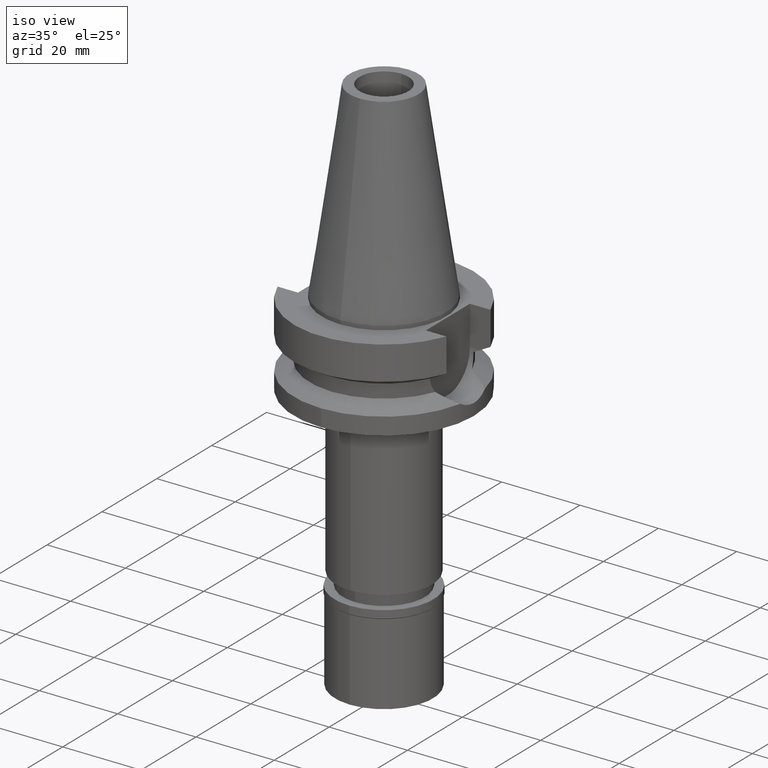
[diagram: clean part render]
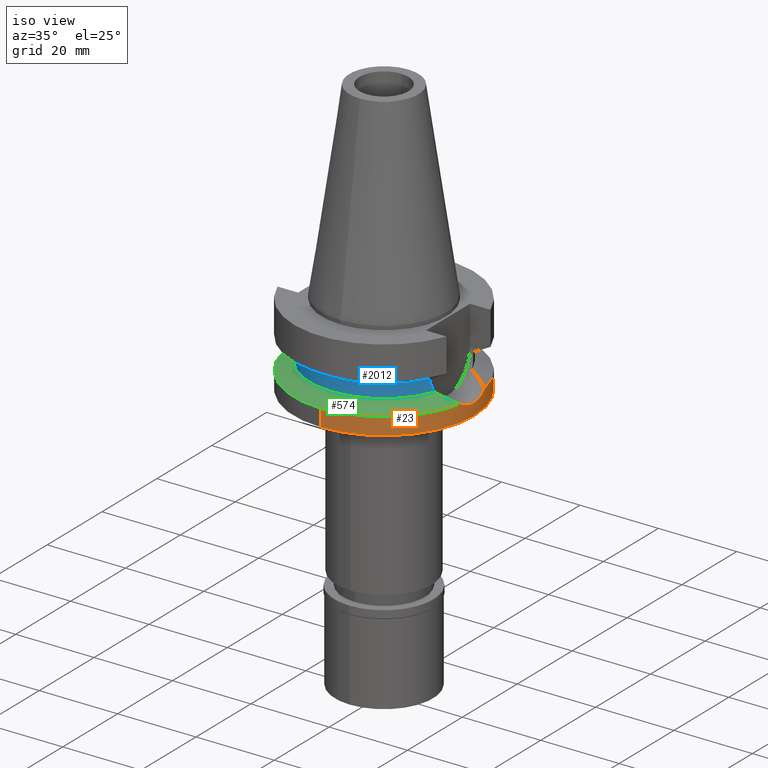
[diagram: same view with three faces highlighted in distinct colors, each labeled with its STEP entity id]
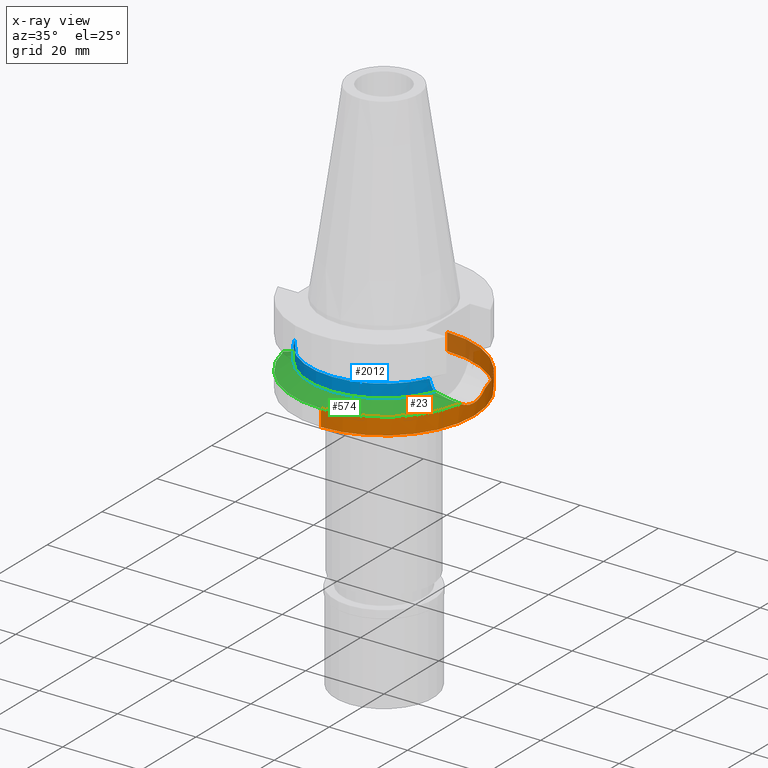
[diagram: x-ray of the same camera — body ghosted, the three highlighted faces saturated]
A machine part, iso view with three faces highlighted in distinct colors.
The next image is the same camera in x-ray (body ghosted, the three faces saturated) — at least one of them is partly hidden behind the body in this view.
Their STEP definitions:

[orange] entity #23 — the highlighted cylindrical surface (partial cylindrical patch) has radius 23 mm, axis along (0, 0, -1).
#23 = ADVANCED_FACE ( 'NONE', ( #2486 ), #594, .T. ) ;
#69 = CARTESIAN_POINT ( 'NONE',  ( 22.88692923645053057, 2.276461704510261974, -18.67142353418033096 ) ) ;
#86 = CARTESIAN_POINT ( 'NONE',  ( 0.0000000000000000000, 1.896610497840000171E-14, 54.87000000000000455 ) ) ;
#95 = CARTESIAN_POINT ( 'NONE',  ( 22.81276282092490248, 3.007048462357388541, -18.45119323510790821 ) ) ;
#121 = CARTESIAN_POINT ( 'NONE',  ( 0.0000000000000000000, -23.00000000000000000, -22.00000000000000000 ) ) ;
#167 = VERTEX_POINT ( 'NONE', #1388 ) ;
#203 = CARTESIAN_POINT ( 'NONE',  ( 22.83389994369429488, -2.758037875350555002, -18.51337712290887438 ) ) ;
#214 = DIRECTION ( 'NONE',  ( 0.0000000000000000000, 2.277793377031000010E-14, -1.000000000000000000 ) ) ;
#242 = EDGE_CURVE ( 'NONE', #167, #2238, #1400, .T. ) ;
#308 = CARTESIAN_POINT ( 'NONE',  ( 0.0000000000000000000, 1.896610497840000171E-14, -22.00000000000000000 ) ) ;
#353 = VERTEX_POINT ( 'NONE', #2067 ) ;
#374 = CARTESIAN_POINT ( 'NONE',  ( 0.0000000000000000000, 23.00000000000000000, -22.00000000000000000 ) ) ;
#422 = VERTEX_POINT ( 'NONE', #2257 ) ;
#459 = AXIS2_PLACEMENT_3D ( 'NONE', #1865, #937, #1881 ) ;
#473 = CARTESIAN_POINT ( 'NONE',  ( 22.87988649924657381, -2.346199435544825018, -18.65051771911470269 ) ) ;
#509 = CIRCLE ( 'NONE', #459, 23.00000000000001066 ) ;
#565 = CARTESIAN_POINT ( 'NONE',  ( 23.00000000000000000, 0.0000000000000000000, -19.00000000000000000 ) ) ;
#580 = CARTESIAN_POINT ( 'NONE',  ( 22.91431153747816651, 1.985557157342199730, -18.75241681136827765 ) ) ;
#583 = ORIENTED_EDGE ( 'NONE', *, *, #1811, .F. ) ;
#594 = CYLINDRICAL_SURFACE ( 'NONE', #1144, 23.00000000000000000 ) ;
#613 = VERTEX_POINT ( 'NONE', #2346 ) ;
#624 = AXIS2_PLACEMENT_3D ( 'NONE', #308, #773, #1718 ) ;
#687 = CARTESIAN_POINT ( 'NONE',  ( 22.84962028092111908, -2.626375749139444160, -18.56047594373221798 ) ) ;
#693 = EDGE_CURVE ( 'NONE', #613, #1492, #1495, .T. ) ;
#773 = DIRECTION ( 'NONE',  ( 0.0000000000000000000, 0.0000000000000000000, 1.000000000000000000 ) ) ;
#803 = CARTESIAN_POINT ( 'NONE',  ( 22.99017193261398617, 0.7694920435362386790, -18.97277318380660915 ) ) ;
#880 = VECTOR ( 'NONE', #1960, 1000.000000000000000 ) ;
#906 = CARTESIAN_POINT ( 'NONE',  ( 22.86637095347489179, -2.474873559118825561, -18.61035720455427267 ) ) ;
#909 = ORIENTED_EDGE ( 'NONE', *, *, #242, .T. ) ;
#937 = DIRECTION ( 'NONE',  ( 0.0000000000000000000, 0.0000000000000000000, -1.000000000000000000 ) ) ;
#949 = EDGE_CURVE ( 'NONE', #613, #353, #2415, .T. ) ;
#955 = CARTESIAN_POINT ( 'NONE',  ( 22.87768279851003328, -2.367574593128547900, -18.64397267214555143 ) ) ;
#972 = CARTESIAN_POINT ( 'NONE',  ( 23.00000000000000000, 0.0000000000000000000, -19.00000000000000000 ) ) ;
#980 = ORIENTED_EDGE ( 'NONE', *, *, #2529, .T. ) ;
#997 = EDGE_CURVE ( 'NONE', #2238, #1492, #2912, .T. ) ;
#1069 = CARTESIAN_POINT ( 'NONE',  ( 22.70469624449562218, 3.750064563766630332, -18.12842789141188149 ) ) ;
#1142 = CARTESIAN_POINT ( 'NONE',  ( 23.00000000000000000, 0.0000000000000000000, -19.00000000000000000 ) ) ;
#1144 = AXIS2_PLACEMENT_3D ( 'NONE', #86, #1518, #2236 ) ;
#1159 = ORIENTED_EDGE ( 'NONE', *, *, #997, .T. ) ;
#1170 = CARTESIAN_POINT ( 'NONE',  ( 22.69499876051721898, -3.748130140520612219, -18.08542776797766649 ) ) ;
#1180 = AXIS2_PLACEMENT_3D ( 'NONE', #1662, #2600, #1733 ) ;
#1275 = CARTESIAN_POINT ( 'NONE',  ( 0.0000000000000000000, 23.00000000000000000, -17.63279163029000074 ) ) ;
#1318 = CARTESIAN_POINT ( 'NONE',  ( 22.94840264622341408, 1.547803452031115246, -18.85231193865289612 ) ) ;
#1325 = ORIENTED_EDGE ( 'NONE', *, *, #693, .F. ) ;
#1388 = CARTESIAN_POINT ( 'NONE',  ( 0.0000000000000000000, -23.00000000000000000, -17.63279163029000074 ) ) ;
#1400 = LINE ( 'NONE', #2334, #2782 ) ;
#1443 = CARTESIAN_POINT ( 'NONE',  ( 22.87434885953238961, -2.399678633086312907, -18.63406941507518866 ) ) ;
#1492 = VERTEX_POINT ( 'NONE', #374 ) ;
#1495 = LINE ( 'NONE', #1275, #880 ) ;
#1518 = DIRECTION ( 'NONE',  ( 0.0000000000000000000, 0.0000000000000000000, -1.000000000000000000 ) ) ;
#1527 = CARTESIAN_POINT ( 'NONE',  ( 22.88451061049226354, 2.300661898068559363, -18.66424747574715326 ) ) ;
#1611 = CARTESIAN_POINT ( 'NONE',  ( 22.80064244538061402, -3.023462465539700883, -18.41303962339146594 ) ) ;
#1639 = B_SPLINE_CURVE_WITH_KNOTS ( 'NONE', 3,
 ( #565, #1991, #803, #2738, #1318, #1777, #580, #1751, #2501, #69, #1527, #2460, #95, #1069, #2011 ),
 .UNSPECIFIED., .F., .F.,
 ( 4, 2, 2, 1, 1, 1, 2, 2, 4 ),
 ( 0.0000000000000000000, 0.2499999999999917843, 0.3749999999999876210, 0.4374999999999852895, 0.4687499999999839573, 0.4843749999999835132, 0.4921874999999836242, 0.4999999999999836797, 1.000000000000000000 ),
 .UNSPECIFIED. ) ;
#1662 = CARTESIAN_POINT ( 'NONE',  ( 0.0000000000000000000, 1.022848384030000006E-14, -17.63279163029000074 ) ) ;
#1718 = DIRECTION ( 'NONE',  ( 0.0000000000000000000, -1.000000000000000000, 0.0000000000000000000 ) ) ;
#1733 = DIRECTION ( 'NONE',  ( 0.0000000000000000000, 1.000000000000000000, 0.0000000000000000000 ) ) ;
#1751 = CARTESIAN_POINT ( 'NONE',  ( 22.89872483685815752, 2.155364106060176699, -18.70637446846485119 ) ) ;
#1777 = CARTESIAN_POINT ( 'NONE',  ( 22.92628949460487320, 1.839699739693517744, -18.78759767041186635 ) ) ;
#1811 = EDGE_CURVE ( 'NONE', #1928, #353, #1639, .T. ) ;
#1865 = CARTESIAN_POINT ( 'NONE',  ( 0.0000000000000000000, 1.022848384030000006E-14, -17.63279163029000074 ) ) ;
#1881 = DIRECTION ( 'NONE',  ( 0.9807766722643714852, -0.1951335930638943839, 0.0000000000000000000 ) ) ;
#1893 = ORIENTED_EDGE ( 'NONE', *, *, #2425, .F. ) ;
#1928 = VERTEX_POINT ( 'NONE', #1142 ) ;
#1960 = DIRECTION ( 'NONE',  ( 0.0000000000000000000, -2.603192430893000129E-14, -1.000000000000000000 ) ) ;
#1991 = CARTESIAN_POINT ( 'NONE',  ( 22.99999999999999645, 0.3819330746932648180, -19.00000000000000000 ) ) ;
#2011 = CARTESIAN_POINT ( 'NONE',  ( 22.55786346208000026, 4.488072640470000430, -17.63279163029000074 ) ) ;
#2067 = CARTESIAN_POINT ( 'NONE',  ( 22.55786346208000026, 4.488072640470000430, -17.63279163029000074 ) ) ;
#2077 = CARTESIAN_POINT ( 'NONE',  ( 22.96068727070343840, -1.550908896325571051, -18.89044702260934727 ) ) ;
#2096 = EDGE_LOOP ( 'NONE', ( #980, #909, #1159, #1325, #2992, #583, #1893 ) ) ;
#2142 = CARTESIAN_POINT ( 'NONE',  ( 23.00000000000000355, -0.7639032130312862767, -19.00000000000000711 ) ) ;
#2236 = DIRECTION ( 'NONE',  ( 0.0000000000000000000, -1.000000000000000000, 0.0000000000000000000 ) ) ;
#2238 = VERTEX_POINT ( 'NONE', #121 ) ;
#2257 = CARTESIAN_POINT ( 'NONE',  ( 22.55786346208000026, -4.488072640470000430, -17.63279163029000074 ) ) ;
#2307 = CARTESIAN_POINT ( 'NONE',  ( 22.77604834802479061, -3.203223500513558974, -18.33795888262340767 ) ) ;
#2334 = CARTESIAN_POINT ( 'NONE',  ( 0.0000000000000000000, -23.00000000000000000, -17.63279163029000074 ) ) ;
#2346 = CARTESIAN_POINT ( 'NONE',  ( 0.0000000000000000000, 23.00000000000000000, -17.63279163029000074 ) ) ;
#2415 = CIRCLE ( 'NONE', #1180, 23.00000000000000000 ) ;
#2425 = EDGE_CURVE ( 'NONE', #422, #1928, #2549, .T. ) ;
#2460 = CARTESIAN_POINT ( 'NONE',  ( 22.88314600965598444, 2.314192953271962505, -18.66019681558690380 ) ) ;
#2479 = CARTESIAN_POINT ( 'NONE',  ( 22.63127597492535159, -4.119088095468312893, -17.88059666937989434 ) ) ;
#2486 = FACE_OUTER_BOUND ( 'NONE', #2096, .T. ) ;
#2501 = CARTESIAN_POINT ( 'NONE',  ( 22.89052838222177400, 2.240151747002716132, -18.68209761430514959 ) ) ;
#2529 = EDGE_CURVE ( 'NONE', #422, #167, #509, .T. ) ;
#2549 = B_SPLINE_CURVE_WITH_KNOTS ( 'NONE', 3,
 ( #2981, #2479, #1170, #2307, #1611, #203, #687, #906, #1443, #955, #473, #2575, #2077, #2142, #972 ),
 .UNSPECIFIED., .F., .F.,
 ( 4, 2, 2, 1, 1, 1, 2, 2, 4 ),
 ( 0.0000000000000000000, 0.2499999999999910627, 0.3749999999999866773, 0.4374999999999846789, 0.4687499999999840128, 0.4843749999999840683, 0.4921874999999841238, 0.4999999999999841238, 1.000000000000000000 ),
 .UNSPECIFIED. ) ;
#2575 = CARTESIAN_POINT ( 'NONE',  ( 22.88083328931979210, -2.336958828928029863, -18.65332934399297216 ) ) ;
#2600 = DIRECTION ( 'NONE',  ( 0.0000000000000000000, 0.0000000000000000000, -1.000000000000000000 ) ) ;
#2738 = CARTESIAN_POINT ( 'NONE',  ( 22.96068773045593403, 1.352966403479912039, -18.88792219677307926 ) ) ;
#2782 = VECTOR ( 'NONE', #214, 1000.000000000000000 ) ;
#2912 = CIRCLE ( 'NONE', #624, 23.00000000000000000 ) ;
#2981 = CARTESIAN_POINT ( 'NONE',  ( 22.55786346208000026, -4.488072640470000430, -17.63279163029000074 ) ) ;
#2992 = ORIENTED_EDGE ( 'NONE', *, *, #949, .T. ) ;

[blue] entity #2012 — the highlighted cylindrical surface (partial cylindrical patch) has radius 19 mm, axis along (0, 0, -1).
#176 = CARTESIAN_POINT ( 'NONE',  ( -17.45721622720547828, -7.500114418572164432, -13.87568910937008404 ) ) ;
#179 = B_SPLINE_CURVE_WITH_KNOTS ( 'NONE', 3,
 ( #791, #1516, #659, #1808, #1096, #2766, #176, #394, #927, #441, #3036, #2070, #1583, #1645, #462 ),
 .UNSPECIFIED., .F., .F.,
 ( 4, 2, 2, 1, 1, 1, 2, 2, 4 ),
 ( 0.0000000000000000000, 0.2499999999999881761, 0.3749999999999821809, 0.4374999999999784617, 0.4687499999999756306, 0.4843749999999747424, 0.4921874999999750755, 0.4999999999999753530, 1.000000000000000000 ),
 .UNSPECIFIED. ) ;
#196 = CARTESIAN_POINT ( 'NONE',  ( 17.25079912590087972, -7.963111191504665065, -12.16468723347666092 ) ) ;
#232 = EDGE_CURVE ( 'NONE', #887, #2938, #1410, .T. ) ;
#319 = EDGE_CURVE ( 'NONE', #2170, #2938, #707, .T. ) ;
#394 = CARTESIAN_POINT ( 'NONE',  ( -17.43828051763171061, -7.543867038468916597, -13.75975511341033197 ) ) ;
#441 = CARTESIAN_POINT ( 'NONE',  ( -17.42529035808621884, -7.573770179169570405, -13.67774275269316320 ) ) ;
#445 = CARTESIAN_POINT ( 'NONE',  ( 17.75736593456000278, -6.758398853743999624, -15.32339055352999857 ) ) ;
#462 = CARTESIAN_POINT ( 'NONE',  ( -17.23531622872000213, -7.996491146968002006, -11.87660607765000087 ) ) ;
#490 = CARTESIAN_POINT ( 'NONE',  ( -17.23531622872000213, -7.996491146968002006, -11.87660607765000087 ) ) ;
#659 = CARTESIAN_POINT ( 'NONE',  ( -17.62114728971356570, -7.108330574435445470, -14.74101777743164376 ) ) ;
#681 = CARTESIAN_POINT ( 'NONE',  ( 17.41455400305749990, -7.598412036632487876, -13.60833259785740879 ) ) ;
#702 = DIRECTION ( 'NONE',  ( 0.0000000000000000000, 0.0000000000000000000, -1.000000000000000000 ) ) ;
#707 = CIRCLE ( 'NONE', #2440, 19.00000000000000000 ) ;
#791 = CARTESIAN_POINT ( 'NONE',  ( -17.75736593456000278, -6.758398853743999624, -15.32339055352999857 ) ) ;
#798 = CARTESIAN_POINT ( 'NONE',  ( -17.75736593456000278, -6.758398853743999624, -15.32339055352999857 ) ) ;
#881 = CARTESIAN_POINT ( 'NONE',  ( 17.41029288300236288, -7.608179589561235190, -13.58035844461900865 ) ) ;
#887 = VERTEX_POINT ( 'NONE', #2366 ) ;
#927 = CARTESIAN_POINT ( 'NONE',  ( -17.42913852641443029, -7.564920785703066919, -13.70227250424759369 ) ) ;
#988 = EDGE_LOOP ( 'NONE', ( #2577, #1251, #2265, #1658 ) ) ;
#1096 = CARTESIAN_POINT ( 'NONE',  ( -17.51074945342908151, -7.374797396725243814, -14.18056436384984664 ) ) ;
#1108 = CARTESIAN_POINT ( 'NONE',  ( 0.0000000000000000000, 1.022848384030000006E-14, -15.32339055352999857 ) ) ;
#1116 = CARTESIAN_POINT ( 'NONE',  ( 17.36640948880069146, -7.707982828137934561, -13.27282317309930271 ) ) ;
#1146 = CARTESIAN_POINT ( 'NONE',  ( 17.32020187249955256, -7.811452264125294143, -12.90108126309827874 ) ) ;
#1251 = ORIENTED_EDGE ( 'NONE', *, *, #319, .T. ) ;
#1283 = CYLINDRICAL_SURFACE ( 'NONE', #2928, 19.00000000000000000 ) ;
#1352 = CARTESIAN_POINT ( 'NONE',  ( 17.27395772733963142, -7.913379800517086338, -12.45762674838754691 ) ) ;
#1410 = B_SPLINE_CURVE_WITH_KNOTS ( 'NONE', 3,
 ( #2790, #196, #1352, #1146, #1860, #1116, #1585, #2807, #881, #681, #1634, #2569, #2586, #1422, #445 ),
 .UNSPECIFIED., .F., .F.,
 ( 4, 2, 2, 1, 1, 1, 2, 2, 4 ),
 ( 0.0000000000000000000, 0.2499999999999958922, 0.3749999999999936717, 0.4374999999999927836, 0.4687499999999922839, 0.4843749999999920064, 0.4921874999999920064, 0.4999999999999920064, 1.000000000000000000 ),
 .UNSPECIFIED. ) ;
#1422 = CARTESIAN_POINT ( 'NONE',  ( 17.61322740984528323, -7.137115852225535129, -14.73814199246520396 ) ) ;
#1429 = DIRECTION ( 'NONE',  ( 0.0000000000000000000, -1.000000000000000000, 0.0000000000000000000 ) ) ;
#1507 = DIRECTION ( 'NONE',  ( 0.0000000000000000000, -1.000000000000000000, 0.0000000000000000000 ) ) ;
#1516 = CARTESIAN_POINT ( 'NONE',  ( -17.68528418005032776, -6.947790175518353983, -15.03071555084754429 ) ) ;
#1583 = CARTESIAN_POINT ( 'NONE',  ( -17.32791680506717924, -7.797408658741883158, -13.04851916311611326 ) ) ;
#1585 = CARTESIAN_POINT ( 'NONE',  ( 17.38156622602872403, -7.673725376854040547, -13.38458314363614576 ) ) ;
#1634 = CARTESIAN_POINT ( 'NONE',  ( 17.41740973184815644, -7.591861673416115508, -13.62698225825054799 ) ) ;
#1645 = CARTESIAN_POINT ( 'NONE',  ( -17.26628428878155574, -7.929745229173653875, -12.45263121958808483 ) ) ;
#1658 = ORIENTED_EDGE ( 'NONE', *, *, #2547, .T. ) ;
#1808 = CARTESIAN_POINT ( 'NONE',  ( -17.53685925046779204, -7.312726841979271697, -14.31911649704484901 ) ) ;
#1860 = CARTESIAN_POINT ( 'NONE',  ( 17.33753429471982344, -7.772924035376696850, -13.04956639087422232 ) ) ;
#1867 = EDGE_CURVE ( 'NONE', #2170, #2444, #179, .T. ) ;
#2012 = ADVANCED_FACE ( 'NONE', ( #2909 ), #1283, .T. ) ;
#2048 = DIRECTION ( 'NONE',  ( 0.0000000000000000000, -1.000000000000000000, 0.0000000000000000000 ) ) ;
#2070 = CARTESIAN_POINT ( 'NONE',  ( -17.42165591777232692, -7.582123399467520564, -13.65444127733416657 ) ) ;
#2170 = VERTEX_POINT ( 'NONE', #798 ) ;
#2208 = CARTESIAN_POINT ( 'NONE',  ( 0.0000000000000000000, 1.896610497840000171E-14, 54.87000000000000455 ) ) ;
#2265 = ORIENTED_EDGE ( 'NONE', *, *, #232, .F. ) ;
#2366 = CARTESIAN_POINT ( 'NONE',  ( 17.23531135313000107, -7.996501749111999402, -11.87660739354000050 ) ) ;
#2440 = AXIS2_PLACEMENT_3D ( 'NONE', #1108, #2481, #2048 ) ;
#2444 = VERTEX_POINT ( 'NONE', #490 ) ;
#2455 = DIRECTION ( 'NONE',  ( 0.0000000000000000000, 0.0000000000000000000, -1.000000000000000000 ) ) ;
#2480 = AXIS2_PLACEMENT_3D ( 'NONE', #2828, #702, #1429 ) ;
#2481 = DIRECTION ( 'NONE',  ( 0.0000000000000000000, 0.0000000000000000000, 1.000000000000000000 ) ) ;
#2547 = EDGE_CURVE ( 'NONE', #887, #2444, #2731, .T. ) ;
#2569 = CARTESIAN_POINT ( 'NONE',  ( 17.41902886904345138, -7.588145056447753056, -13.63749496349907453 ) ) ;
#2577 = ORIENTED_EDGE ( 'NONE', *, *, #1867, .F. ) ;
#2586 = CARTESIAN_POINT ( 'NONE',  ( 17.50086807624851204, -7.400179108504425507, -14.16641331453757147 ) ) ;
#2731 = CIRCLE ( 'NONE', #2480, 19.00000000000000000 ) ;
#2766 = CARTESIAN_POINT ( 'NONE',  ( -17.47456408193587762, -7.459707853827860724, -13.97666143191954014 ) ) ;
#2790 = CARTESIAN_POINT ( 'NONE',  ( 17.23531135313000107, -7.996501749111999402, -11.87660739354000050 ) ) ;
#2807 = CARTESIAN_POINT ( 'NONE',  ( 17.40050758145642718, -7.630565565486477020, -13.51508960620993882 ) ) ;
#2828 = CARTESIAN_POINT ( 'NONE',  ( 0.0000000000000000000, 1.093341284896999988E-14, -11.87660944646999894 ) ) ;
#2909 = FACE_OUTER_BOUND ( 'NONE', #988, .T. ) ;
#2928 = AXIS2_PLACEMENT_3D ( 'NONE', #2208, #2455, #1507 ) ;
#2938 = VERTEX_POINT ( 'NONE', #3041 ) ;
#3036 = CARTESIAN_POINT ( 'NONE',  ( -17.42274042984691107, -7.579631478948016365, -13.66141326527119482 ) ) ;
#3041 = CARTESIAN_POINT ( 'NONE',  ( 17.75736593456000278, -6.758398853743999624, -15.32339055352999857 ) ) ;

[green] entity #574 — the highlighted conical surface has half-angle 60 deg.
#132 = ORIENTED_EDGE ( 'NONE', *, *, #2529, .F. ) ;
#145 = B_SPLINE_CURVE_WITH_KNOTS ( 'NONE', 3,
 ( #3064, #1902, #1205, #1463 ),
 .UNSPECIFIED., .F., .F.,
 ( 4, 4 ),
 ( 0.0000000000000000000, 1.000000000000000000 ),
 .UNSPECIFIED. ) ;
#167 = VERTEX_POINT ( 'NONE', #1388 ) ;
#194 = DIRECTION ( 'NONE',  ( 0.0000000000000000000, -1.000000000000000000, 0.0000000000000000000 ) ) ;
#206 = CARTESIAN_POINT ( 'NONE',  ( 0.0000000000000000000, 1.022848384030000006E-14, -16.47809109191000232 ) ) ;
#319 = EDGE_CURVE ( 'NONE', #2170, #2938, #707, .T. ) ;
#348 = CIRCLE ( 'NONE', #2436, 23.00000000000000000 ) ;
#422 = VERTEX_POINT ( 'NONE', #2257 ) ;
#459 = AXIS2_PLACEMENT_3D ( 'NONE', #1865, #937, #1881 ) ;
#509 = CIRCLE ( 'NONE', #459, 23.00000000000001066 ) ;
#574 = ADVANCED_FACE ( 'NONE', ( #688 ), #825, .T. ) ;
#675 = AXIS2_PLACEMENT_3D ( 'NONE', #206, #2145, #1687 ) ;
#688 = FACE_OUTER_BOUND ( 'NONE', #1627, .T. ) ;
#707 = CIRCLE ( 'NONE', #2440, 19.00000000000000000 ) ;
#708 = ORIENTED_EDGE ( 'NONE', *, *, #319, .F. ) ;
#798 = CARTESIAN_POINT ( 'NONE',  ( -17.75736593456000278, -6.758398853743999624, -15.32339055352999857 ) ) ;
#825 = CONICAL_SURFACE ( 'NONE', #675, 21.00000000000000000, 1.047197551196400456 ) ;
#864 = EDGE_CURVE ( 'NONE', #956, #2170, #145, .T. ) ;
#937 = DIRECTION ( 'NONE',  ( 0.0000000000000000000, 0.0000000000000000000, -1.000000000000000000 ) ) ;
#956 = VERTEX_POINT ( 'NONE', #2220 ) ;
#1102 = CARTESIAN_POINT ( 'NONE',  ( 21.37344794600777220, -5.343258989407687842, -17.05846002345388968 ) ) ;
#1108 = CARTESIAN_POINT ( 'NONE',  ( 0.0000000000000000000, 1.022848384030000006E-14, -15.32339055352999857 ) ) ;
#1205 = CARTESIAN_POINT ( 'NONE',  ( -19.77328210351893745, -6.137069160742914420, -16.28355951936574186 ) ) ;
#1247 = B_SPLINE_CURVE_WITH_KNOTS ( 'NONE', 3,
 ( #2930, #2702, #1102, #1306 ),
 .UNSPECIFIED., .F., .F.,
 ( 4, 4 ),
 ( 0.0000000000000000000, 1.000000000000000000 ),
 .UNSPECIFIED. ) ;
#1306 = CARTESIAN_POINT ( 'NONE',  ( 22.55786346208000026, -4.488072640470000430, -17.63279163029000074 ) ) ;
#1385 = DIRECTION ( 'NONE',  ( 0.0000000000000000000, 0.0000000000000000000, -1.000000000000000000 ) ) ;
#1388 = CARTESIAN_POINT ( 'NONE',  ( 0.0000000000000000000, -23.00000000000000000, -17.63279163029000074 ) ) ;
#1463 = CARTESIAN_POINT ( 'NONE',  ( -17.75736593456000278, -6.758398853743999624, -15.32339055352999857 ) ) ;
#1618 = CARTESIAN_POINT ( 'NONE',  ( 0.0000000000000000000, 1.022848384030000006E-14, -17.63279163029000074 ) ) ;
#1627 = EDGE_LOOP ( 'NONE', ( #2696, #132, #2873, #708, #1975 ) ) ;
#1687 = DIRECTION ( 'NONE',  ( 0.0000000000000000000, -1.000000000000000000, 0.0000000000000000000 ) ) ;
#1865 = CARTESIAN_POINT ( 'NONE',  ( 0.0000000000000000000, 1.022848384030000006E-14, -17.63279163029000074 ) ) ;
#1881 = DIRECTION ( 'NONE',  ( 0.9807766722643714852, -0.1951335930638943839, 0.0000000000000000000 ) ) ;
#1902 = CARTESIAN_POINT ( 'NONE',  ( -21.37344794602560327, -5.343258989391840075, -17.05846002346451229 ) ) ;
#1907 = EDGE_CURVE ( 'NONE', #167, #956, #348, .T. ) ;
#1975 = ORIENTED_EDGE ( 'NONE', *, *, #864, .F. ) ;
#2048 = DIRECTION ( 'NONE',  ( 0.0000000000000000000, -1.000000000000000000, 0.0000000000000000000 ) ) ;
#2145 = DIRECTION ( 'NONE',  ( 0.0000000000000000000, 0.0000000000000000000, -1.000000000000000000 ) ) ;
#2170 = VERTEX_POINT ( 'NONE', #798 ) ;
#2220 = CARTESIAN_POINT ( 'NONE',  ( -22.55786346208000026, -4.488072640470000430, -17.63279163029000074 ) ) ;
#2257 = CARTESIAN_POINT ( 'NONE',  ( 22.55786346208000026, -4.488072640470000430, -17.63279163029000074 ) ) ;
#2436 = AXIS2_PLACEMENT_3D ( 'NONE', #1618, #1385, #194 ) ;
#2440 = AXIS2_PLACEMENT_3D ( 'NONE', #1108, #2481, #2048 ) ;
#2481 = DIRECTION ( 'NONE',  ( 0.0000000000000000000, 0.0000000000000000000, 1.000000000000000000 ) ) ;
#2529 = EDGE_CURVE ( 'NONE', #422, #167, #509, .T. ) ;
#2696 = ORIENTED_EDGE ( 'NONE', *, *, #1907, .F. ) ;
#2702 = CARTESIAN_POINT ( 'NONE',  ( 19.77328210350110638, -6.137069160753294561, -16.28355951934972978 ) ) ;
#2873 = ORIENTED_EDGE ( 'NONE', *, *, #2874, .F. ) ;
#2874 = EDGE_CURVE ( 'NONE', #2938, #422, #1247, .T. ) ;
#2930 = CARTESIAN_POINT ( 'NONE',  ( 17.75736593456000278, -6.758398853743999624, -15.32339055352999857 ) ) ;
#2938 = VERTEX_POINT ( 'NONE', #3041 ) ;
#3041 = CARTESIAN_POINT ( 'NONE',  ( 17.75736593456000278, -6.758398853743999624, -15.32339055352999857 ) ) ;
#3064 = CARTESIAN_POINT ( 'NONE',  ( -22.55786346208000026, -4.488072640470000430, -17.63279163029000074 ) ) ;